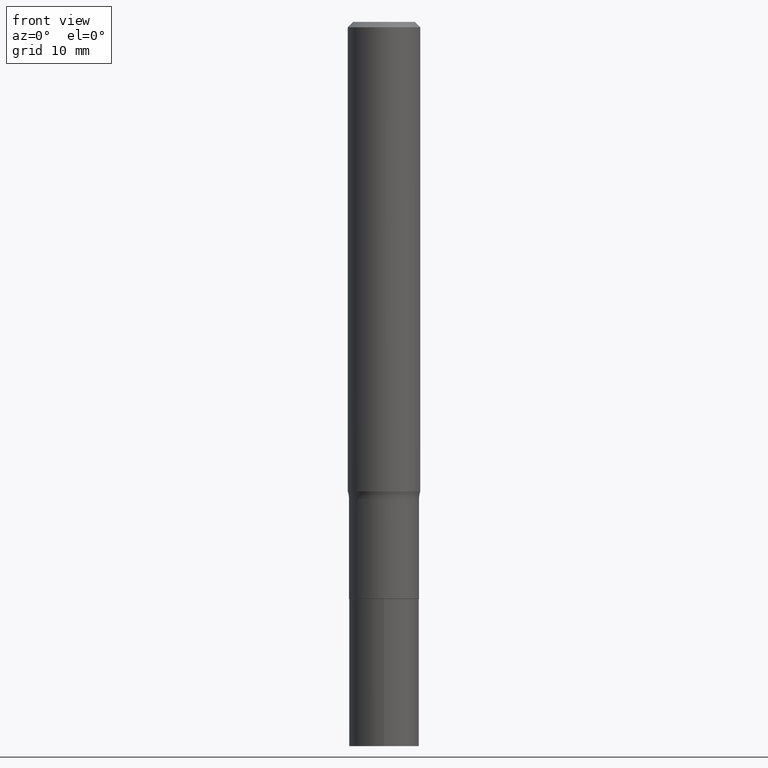
[diagram: clean part render]
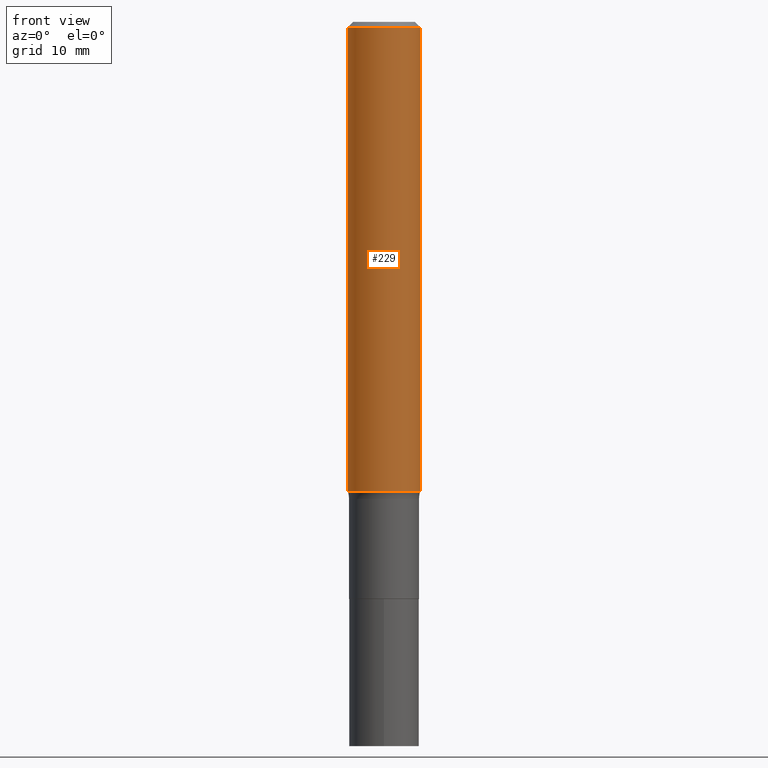
[diagram: same view with one face highlighted and labeled with its STEP entity id]
A machine part, front view. The second image highlights one B-rep face of the part: STEP entity #229.
In plain terms, the highlighted cylindrical surface (edge-blend (fillet) strip) has radius 2.9997 mm, axis along (-0, 0, 1).
Its self-contained STEP definition (entity closure, byte-faithful):
#1 = CARTESIAN_POINT ( 'NONE',  ( 3.744434943004037419E-29, -5.346060720523065079E-15, -1.531172646133749593 ) ) ;
#4 = CARTESIAN_POINT ( 'NONE',  ( 0.1181000000000001077, -8.246878922347488542E-16, 5.758764772215005345E-30 ) ) ;
#7 = VERTEX_POINT ( 'NONE', #51 ) ;
#36 = CARTESIAN_POINT ( 'NONE',  ( 0.1180999999999999966, -8.865394841523548556E-16, -0.01771500000000011954 ) ) ;
#51 = CARTESIAN_POINT ( 'NONE',  ( 0.1181000000000002048, -6.170748612757814919E-15, -1.531172646133749593 ) ) ;
#84 = LINE ( 'NONE', #420, #317 ) ;
#105 = DIRECTION ( 'NONE',  ( 1.000000000000000000, -6.982962677686268288E-15, 0.000000000000000000 ) ) ;
#117 = CIRCLE ( 'NONE', #296, 0.1180999999999999966 ) ;
#134 = CARTESIAN_POINT ( 'NONE',  ( -0.1181000000000002048, -4.506909749590386093E-15, -1.531172646133749593 ) ) ;
#200 = DIRECTION ( 'NONE',  ( -2.445468806185136877E-29, 3.491481338843145188E-15, 1.000000000000000000 ) ) ;
#216 = CIRCLE ( 'NONE', #297, 0.1181000000000002048 ) ;
#223 = ORIENTED_EDGE ( 'NONE', *, *, #353, .F. ) ;
#229 = ADVANCED_FACE ( 'NONE', ( #349 ), #235, .T. ) ;
#234 = ORIENTED_EDGE ( 'NONE', *, *, #446, .T. ) ;
#235 = CYLINDRICAL_SURFACE ( 'NONE', #416, 0.1181000000000001077 ) ;
#247 = LINE ( 'NONE', #4, #316 ) ;
#282 = DIRECTION ( 'NONE',  ( -2.445468806185136597E-29, 3.491481338843145583E-15, 1.000000000000000000 ) ) ;
#296 = AXIS2_PLACEMENT_3D ( 'NONE', #355, #282, #322 ) ;
#297 = AXIS2_PLACEMENT_3D ( 'NONE', #1, #429, #105 ) ;
#298 = EDGE_CURVE ( 'NONE', #7, #460, #247, .T. ) ;
#316 = VECTOR ( 'NONE', #400, 39.37007874015748143 ) ;
#317 = VECTOR ( 'NONE', #200, 39.37007874015748143 ) ;
#322 = DIRECTION ( 'NONE',  ( 1.000000000000000000, -6.982962677686266711E-15, 0.000000000000000000 ) ) ;
#323 = DIRECTION ( 'NONE',  ( 1.000000000000000000, -6.982962677686266711E-15, 4.876176775795935793E-29 ) ) ;
#331 = VERTEX_POINT ( 'NONE', #362 ) ;
#343 = ORIENTED_EDGE ( 'NONE', *, *, #298, .T. ) ;
#349 = FACE_OUTER_BOUND ( 'NONE', #403, .T. ) ;
#350 = ORIENTED_EDGE ( 'NONE', *, *, #435, .F. ) ;
#353 = EDGE_CURVE ( 'NONE', #331, #460, #117, .T. ) ;
#355 = CARTESIAN_POINT ( 'NONE',  ( 4.332147990156998495E-31, -6.185159191760674092E-17, -0.01771500000000011954 ) ) ;
#362 = CARTESIAN_POINT ( 'NONE',  ( -0.1180999999999999966, -1.864805185287656258E-15, -0.01771500000000011954 ) ) ;
#376 = VERTEX_POINT ( 'NONE', #134 ) ;
#400 = DIRECTION ( 'NONE',  ( -2.445468806185136877E-29, 3.491481338843145188E-15, 1.000000000000000000 ) ) ;
#403 = EDGE_LOOP ( 'NONE', ( #350, #234, #343, #223 ) ) ;
#411 = DIRECTION ( 'NONE',  ( -2.445468806185136597E-29, 3.491481338843145583E-15, 1.000000000000000000 ) ) ;
#416 = AXIS2_PLACEMENT_3D ( 'NONE', #451, #411, #323 ) ;
#420 = CARTESIAN_POINT ( 'NONE',  ( -0.1181000000000001077, 8.391509709326790846E-16, -5.809262341591049389E-30 ) ) ;
#429 = DIRECTION ( 'NONE',  ( -2.445468806185136597E-29, 3.491481338843145583E-15, 1.000000000000000000 ) ) ;
#435 = EDGE_CURVE ( 'NONE', #376, #331, #84, .T. ) ;
#446 = EDGE_CURVE ( 'NONE', #376, #7, #216, .T. ) ;
#451 = CARTESIAN_POINT ( 'NONE',  ( 0.000000000000000000, 0.000000000000000000, 0.000000000000000000 ) ) ;
#460 = VERTEX_POINT ( 'NONE', #36 ) ;